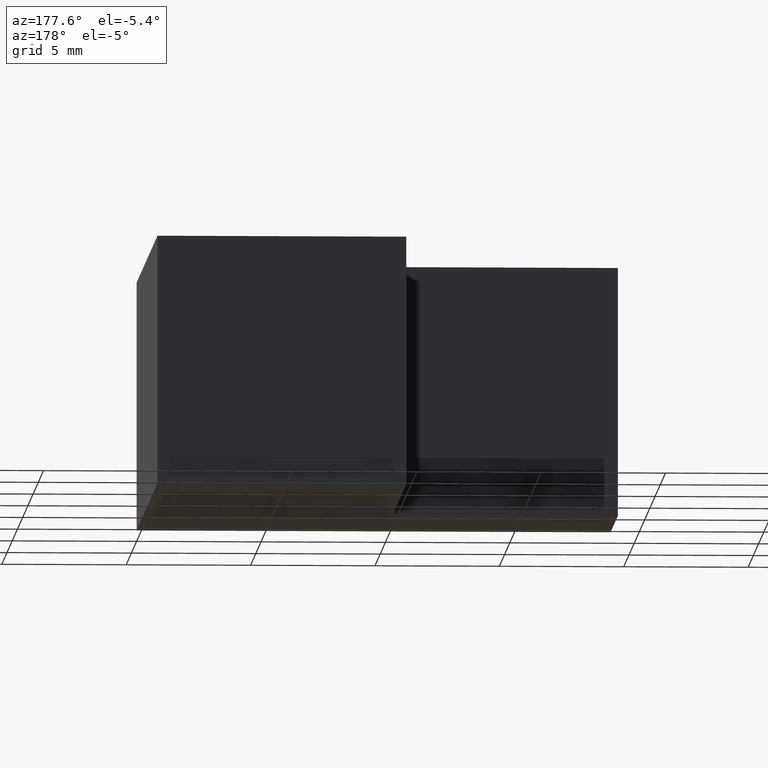
[diagram: clean part render]
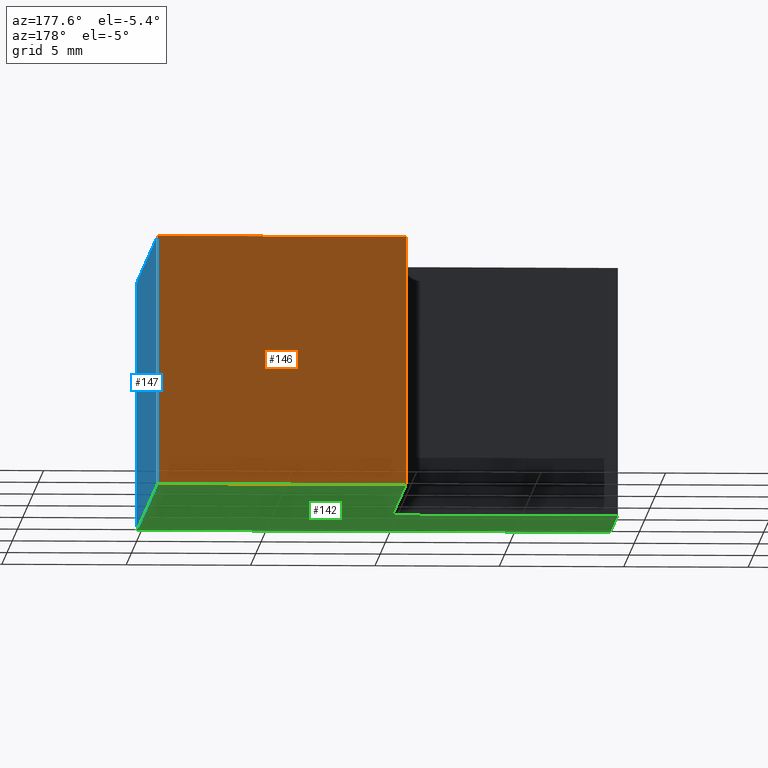
[diagram: same view with three faces highlighted in distinct colors, each labeled with its STEP entity id]
A machine part, auxiliary view with three faces highlighted in distinct colors.
Their STEP definitions:

[orange] entity #146 — the highlighted planar face has unit normal (-0, 1, 0).
#20=FACE_OUTER_BOUND('',#28,.T.);
#28=EDGE_LOOP('',(#116,#117,#118,#119));
#37=LINE('',#230,#55);
#44=LINE('',#244,#62);
#45=LINE('',#247,#63);
#46=LINE('',#248,#64);
#55=VECTOR('',#190,10.);
#62=VECTOR('',#203,10.);
#63=VECTOR('',#206,10.);
#64=VECTOR('',#207,10.);
#69=VERTEX_POINT('',#220);
#73=VERTEX_POINT('',#228);
#77=VERTEX_POINT('',#242);
#78=VERTEX_POINT('',#246);
#85=EDGE_CURVE('',#69,#73,#37,.T.);
#92=EDGE_CURVE('',#77,#73,#44,.T.);
#93=EDGE_CURVE('',#77,#78,#45,.T.);
#94=EDGE_CURVE('',#78,#69,#46,.T.);
#116=ORIENTED_EDGE('',*,*,#93,.T.);
#117=ORIENTED_EDGE('',*,*,#94,.T.);
#118=ORIENTED_EDGE('',*,*,#85,.T.);
#119=ORIENTED_EDGE('',*,*,#92,.F.);
#138=PLANE('',#177);
#146=ADVANCED_FACE('',(#20),#138,.T.);
#177=AXIS2_PLACEMENT_3D('',#245,#204,#205);
#190=DIRECTION('',(-1.,-6.66133814775094E-16,0.));
#203=DIRECTION('',(0.,0.,-1.));
#204=DIRECTION('center_axis',(-6.66133814775094E-16,1.,0.));
#205=DIRECTION('ref_axis',(0.,0.,1.));
#206=DIRECTION('',(1.,6.66133814775094E-16,0.));
#207=DIRECTION('',(0.,0.,-1.));
#220=CARTESIAN_POINT('',(-2.22044604925031E-15,20.,-5.));
#228=CARTESIAN_POINT('',(-10.,20.,-5.));
#230=CARTESIAN_POINT('',(-10.,20.,-5.));
#242=CARTESIAN_POINT('',(-10.,20.,5.));
#244=CARTESIAN_POINT('',(-10.,20.,0.));
#245=CARTESIAN_POINT('Origin',(-10.,20.,0.));
#246=CARTESIAN_POINT('',(-2.22044604925031E-15,20.,5.));
#247=CARTESIAN_POINT('',(-10.,20.,5.));
#248=CARTESIAN_POINT('',(-2.22044604925031E-15,20.,0.));

[blue] entity #147 — the highlighted planar face has unit normal (1, 0, 0).
#21=FACE_OUTER_BOUND('',#29,.T.);
#29=EDGE_LOOP('',(#120,#121,#122,#123));
#32=LINE('',#221,#50);
#46=LINE('',#248,#64);
#47=LINE('',#251,#65);
#48=LINE('',#252,#66);
#50=VECTOR('',#185,10.);
#64=VECTOR('',#207,10.);
#65=VECTOR('',#210,10.);
#66=VECTOR('',#211,10.);
#68=VERTEX_POINT('',#219);
#69=VERTEX_POINT('',#220);
#78=VERTEX_POINT('',#246);
#79=VERTEX_POINT('',#250);
#80=EDGE_CURVE('',#68,#69,#32,.T.);
#94=EDGE_CURVE('',#78,#69,#46,.T.);
#95=EDGE_CURVE('',#78,#79,#47,.T.);
#96=EDGE_CURVE('',#68,#79,#48,.T.);
#120=ORIENTED_EDGE('',*,*,#95,.T.);
#121=ORIENTED_EDGE('',*,*,#96,.F.);
#122=ORIENTED_EDGE('',*,*,#80,.T.);
#123=ORIENTED_EDGE('',*,*,#94,.F.);
#139=PLANE('',#178);
#147=ADVANCED_FACE('',(#21),#139,.T.);
#178=AXIS2_PLACEMENT_3D('',#249,#208,#209);
#185=DIRECTION('',(-3.05311331771918E-16,1.,0.));
#207=DIRECTION('',(0.,0.,-1.));
#208=DIRECTION('center_axis',(1.,3.05311331771918E-16,0.));
#209=DIRECTION('ref_axis',(0.,0.,-1.));
#210=DIRECTION('',(3.05311331771918E-16,-1.,0.));
#211=DIRECTION('',(0.,0.,1.));
#219=CARTESIAN_POINT('',(3.88578058618805E-15,2.22044604925031E-15,-5.));
#220=CARTESIAN_POINT('',(-2.22044604925031E-15,20.,-5.));
#221=CARTESIAN_POINT('',(-2.22044604925031E-15,20.,-5.));
#246=CARTESIAN_POINT('',(-2.22044604925031E-15,20.,5.));
#248=CARTESIAN_POINT('',(-2.22044604925031E-15,20.,0.));
#249=CARTESIAN_POINT('Origin',(-2.22044604925031E-15,20.,0.));
#250=CARTESIAN_POINT('',(3.88578058618805E-15,2.22044604925031E-15,5.));
#251=CARTESIAN_POINT('',(-2.22044604925031E-15,20.,5.));
#252=CARTESIAN_POINT('',(3.88578058618805E-15,2.22044604925031E-15,0.));

[green] entity #142 — the highlighted planar face has unit normal (0, 0, 1).
#16=FACE_OUTER_BOUND('',#24,.T.);
#24=EDGE_LOOP('',(#98,#99,#100,#101,#102,#103));
#32=LINE('',#221,#50);
#33=LINE('',#223,#51);
#34=LINE('',#225,#52);
#35=LINE('',#227,#53);
#36=LINE('',#229,#54);
#37=LINE('',#230,#55);
#50=VECTOR('',#185,10.);
#51=VECTOR('',#186,10.);
#52=VECTOR('',#187,10.);
#53=VECTOR('',#188,10.);
#54=VECTOR('',#189,10.);
#55=VECTOR('',#190,10.);
#68=VERTEX_POINT('',#219);
#69=VERTEX_POINT('',#220);
#70=VERTEX_POINT('',#222);
#71=VERTEX_POINT('',#224);
#72=VERTEX_POINT('',#226);
#73=VERTEX_POINT('',#228);
#80=EDGE_CURVE('',#68,#69,#32,.T.);
#81=EDGE_CURVE('',#70,#68,#33,.T.);
#82=EDGE_CURVE('',#71,#70,#34,.T.);
#83=EDGE_CURVE('',#72,#71,#35,.T.);
#84=EDGE_CURVE('',#73,#72,#36,.T.);
#85=EDGE_CURVE('',#69,#73,#37,.T.);
#98=ORIENTED_EDGE('',*,*,#80,.F.);
#99=ORIENTED_EDGE('',*,*,#81,.F.);
#100=ORIENTED_EDGE('',*,*,#82,.F.);
#101=ORIENTED_EDGE('',*,*,#83,.F.);
#102=ORIENTED_EDGE('',*,*,#84,.F.);
#103=ORIENTED_EDGE('',*,*,#85,.F.);
#134=PLANE('',#173);
#142=ADVANCED_FACE('',(#16),#134,.F.);
#173=AXIS2_PLACEMENT_3D('',#218,#183,#184);
#183=DIRECTION('center_axis',(0.,0.,1.));
#184=DIRECTION('ref_axis',(1.,0.,0.));
#185=DIRECTION('',(-3.05311331771918E-16,1.,0.));
#186=DIRECTION('',(1.,1.45698559662094E-16,0.));
#187=DIRECTION('',(3.1720657846433E-16,-1.,0.));
#188=DIRECTION('',(-1.,-3.68029731919941E-16,0.));
#189=DIRECTION('',(3.41607084500048E-16,-1.,0.));
#190=DIRECTION('',(-1.,-6.66133814775094E-16,0.));
#218=CARTESIAN_POINT('Origin',(-8.01859795134443,8.49359795134443,-5.));
#219=CARTESIAN_POINT('',(3.88578058618805E-15,2.22044604925031E-15,-5.));
#220=CARTESIAN_POINT('',(-2.22044604925031E-15,20.,-5.));
#221=CARTESIAN_POINT('',(-2.22044604925031E-15,20.,-5.));
#222=CARTESIAN_POINT('',(-19.05,-5.55111512312578E-16,-5.));
#223=CARTESIAN_POINT('',(3.88578058618805E-15,2.22044604925031E-15,-5.));
#224=CARTESIAN_POINT('',(-19.05,7.,-5.));
#225=CARTESIAN_POINT('',(-19.05,-5.55111512312578E-16,-5.));
#226=CARTESIAN_POINT('',(-10.,7.,-5.));
#227=CARTESIAN_POINT('',(-19.05,7.,-5.));
#228=CARTESIAN_POINT('',(-10.,20.,-5.));
#229=CARTESIAN_POINT('',(-10.,7.,-5.));
#230=CARTESIAN_POINT('',(-10.,20.,-5.));